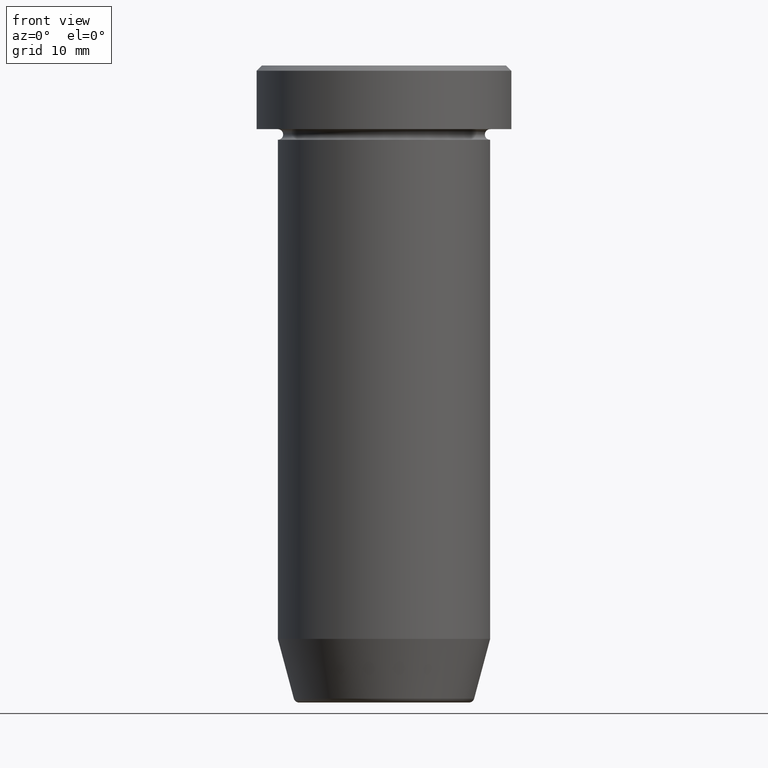
[diagram: clean part render]
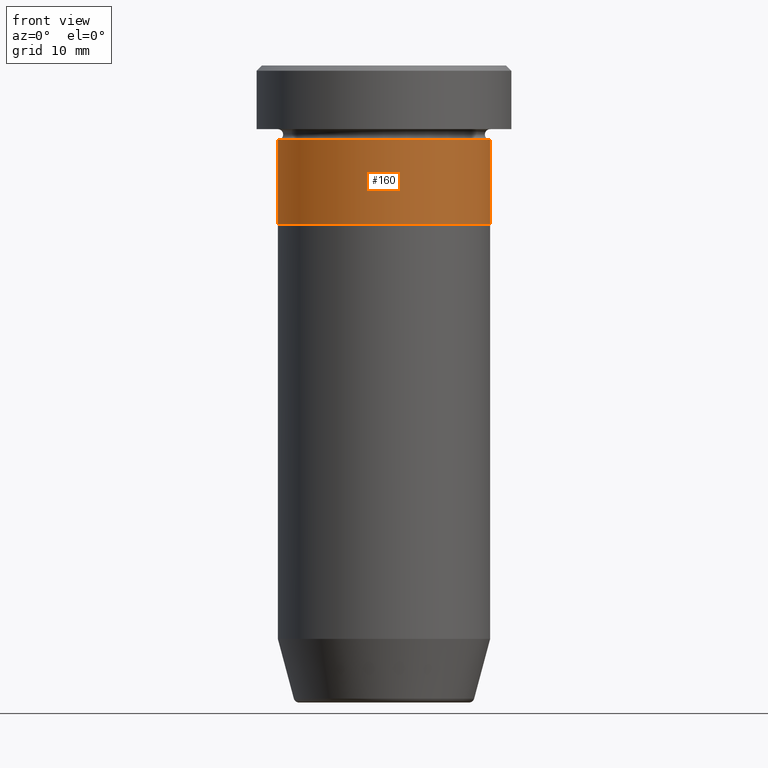
[diagram: same view with one face highlighted and labeled with its STEP entity id]
A machine part, front view. The second image highlights one B-rep face of the part: STEP entity #160.
In plain terms, the highlighted cylindrical surface (partial cylindrical patch) has radius 10 mm, axis along (-0, -0, 1).
Its self-contained STEP definition (entity closure, byte-faithful):
#7 = CARTESIAN_POINT ( 'NONE',  ( -10.00000000000000000, 1.224646799147353256E-15, 0.000000000000000000 ) ) ;
#24 = DIRECTION ( 'NONE',  ( -0.000000000000000000, -0.000000000000000000, 1.000000000000000000 ) ) ;
#29 = VERTEX_POINT ( 'NONE', #214 ) ;
#59 = CARTESIAN_POINT ( 'NONE',  ( 10.00000000000000000, 0.000000000000000000, -15.00000000000000000 ) ) ;
#73 = DIRECTION ( 'NONE',  ( 1.000000000000000000, 0.000000000000000000, 0.000000000000000000 ) ) ;
#83 = EDGE_CURVE ( 'NONE', #204, #134, #400, .T. ) ;
#88 = AXIS2_PLACEMENT_3D ( 'NONE', #544, #308, #174 ) ;
#110 = EDGE_LOOP ( 'NONE', ( #326, #255, #317, #441 ) ) ;
#130 = EDGE_CURVE ( 'NONE', #338, #204, #533, .T. ) ;
#134 = VERTEX_POINT ( 'NONE', #171 ) ;
#160 = ADVANCED_FACE ( 'NONE', ( #167 ), #504, .T. ) ;
#167 = FACE_OUTER_BOUND ( 'NONE', #110, .T. ) ;
#168 = CARTESIAN_POINT ( 'NONE',  ( 0.000000000000000000, 0.000000000000000000, -15.00000000000000000 ) ) ;
#171 = CARTESIAN_POINT ( 'NONE',  ( 10.00000000000000000, 0.000000000000000000, -6.999999999999999112 ) ) ;
#174 = DIRECTION ( 'NONE',  ( 1.000000000000000000, 0.000000000000000000, 0.000000000000000000 ) ) ;
#204 = VERTEX_POINT ( 'NONE', #59 ) ;
#207 = EDGE_CURVE ( 'NONE', #338, #29, #413, .T. ) ;
#214 = CARTESIAN_POINT ( 'NONE',  ( -10.00000000000000000, 1.224646799147353256E-15, -6.999999999999999112 ) ) ;
#237 = VECTOR ( 'NONE', #258, 1000.000000000000000 ) ;
#255 = ORIENTED_EDGE ( 'NONE', *, *, #130, .T. ) ;
#258 = DIRECTION ( 'NONE',  ( -0.000000000000000000, -0.000000000000000000, 1.000000000000000000 ) ) ;
#269 = EDGE_CURVE ( 'NONE', #29, #134, #461, .T. ) ;
#308 = DIRECTION ( 'NONE',  ( -0.000000000000000000, -0.000000000000000000, 1.000000000000000000 ) ) ;
#317 = ORIENTED_EDGE ( 'NONE', *, *, #83, .T. ) ;
#326 = ORIENTED_EDGE ( 'NONE', *, *, #207, .F. ) ;
#337 = CARTESIAN_POINT ( 'NONE',  ( -10.00000000000000000, 1.224646799147353256E-15, -15.00000000000000000 ) ) ;
#338 = VERTEX_POINT ( 'NONE', #337 ) ;
#347 = DIRECTION ( 'NONE',  ( -0.000000000000000000, -0.000000000000000000, 1.000000000000000000 ) ) ;
#400 = LINE ( 'NONE', #496, #237 ) ;
#413 = LINE ( 'NONE', #7, #464 ) ;
#440 = AXIS2_PLACEMENT_3D ( 'NONE', #571, #24, #73 ) ;
#441 = ORIENTED_EDGE ( 'NONE', *, *, #269, .F. ) ;
#461 = CIRCLE ( 'NONE', #440, 10.00000000000000000 ) ;
#464 = VECTOR ( 'NONE', #466, 1000.000000000000000 ) ;
#466 = DIRECTION ( 'NONE',  ( -0.000000000000000000, -0.000000000000000000, 1.000000000000000000 ) ) ;
#496 = CARTESIAN_POINT ( 'NONE',  ( 10.00000000000000000, 0.000000000000000000, 0.000000000000000000 ) ) ;
#504 = CYLINDRICAL_SURFACE ( 'NONE', #88, 10.00000000000000000 ) ;
#506 = AXIS2_PLACEMENT_3D ( 'NONE', #168, #347, #540 ) ;
#533 = CIRCLE ( 'NONE', #506, 10.00000000000000000 ) ;
#540 = DIRECTION ( 'NONE',  ( 1.000000000000000000, 0.000000000000000000, 0.000000000000000000 ) ) ;
#544 = CARTESIAN_POINT ( 'NONE',  ( 0.000000000000000000, 0.000000000000000000, 0.000000000000000000 ) ) ;
#571 = CARTESIAN_POINT ( 'NONE',  ( 0.000000000000000000, 0.000000000000000000, -6.999999999999999112 ) ) ;